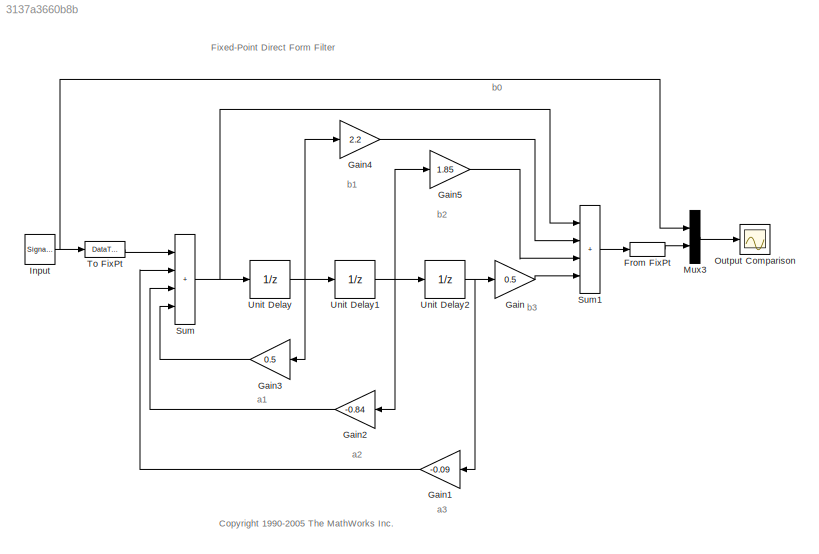
MODEL slx_3137a3660b8b
KIND model
CONFIG AbsTol = auto
CONFIG EnableMultiTasking = off
CONFIG FixedStep = 1
CONFIG MaxStep = auto
CONFIG MinStep = auto
CONFIG RelTol = 1e-3
CONFIG SampleTimeConstraint = Unconstrained
CONFIG SolverName = FixedStepDiscrete
CONFIG StartTime = 0.0
CONFIG StopTime = 200.0
BLOCK [DataTypeConversion] From FixPt
  OutDataTypeStr = double
  RndMeth = Floor
  SaturateOnIntegerOverflow = off
BLOCK [Gain] Gain
  Gain = 0.5
  OutDataTypeStr = fixdt(1,16,10)
  ParamDataTypeStr = sfix( 16 )
BLOCK [Gain] Gain1
  Gain = -0.09
  OutDataTypeStr = fixdt(1,16,10)
  ParamDataTypeStr = sfix( 16 )
BLOCK [Gain] Gain2
  Gain = -0.84
  OutDataTypeStr = fixdt(1,16,10)
  ParamDataTypeStr = sfix( 16 )
BLOCK [Gain] Gain3
  Gain = 0.5
  OutDataTypeStr = fixdt(1,16,10)
  ParamDataTypeStr = sfix( 16 )
BLOCK [Gain] Gain4
  Gain = 2.2
  OutDataTypeStr = fixdt(1,16,10)
  ParamDataTypeStr = sfix( 16 )
BLOCK [Gain] Gain5
  Gain = 1.85
  OutDataTypeStr = fixdt(1,16,10)
  ParamDataTypeStr = sfix( 16 )
BLOCK [SignalGenerator] Input
  Frequency = 0.005
  WaveForm = square
BLOCK [Mux] Mux3
  DisplayOption = bar
  Inputs = 2
BLOCK [Scope] Output Comparison
  Floating = off
  NumInputPorts = 1
  ScopeSpecificationString = Simulink.scopes.TimeScopeBlockCfg('CurrentConfiguration', extmgr.ConfigurationSet(extmgr.Configuration('Core','General UI',true),extmgr.Configuration('Core','Source UI',true),extmgr.Configuration('Sources','WiredSimulink',true,'DataLogging',true,'DataLoggingVariableName','OutputComparison','DataLoggingSaveFormat','StructureWithTime','DataLoggingLimitDataPoints',true,'DataLoggingDecimation','1','Da...<+1762ch>
BLOCK [Sum] Sum
  IconShape = rectangular
  Inputs = ++++
  OutDataTypeStr = fixdt(1,16,10)
BLOCK [Sum] Sum1
  IconShape = rectangular
  Inputs = ++++
  OutDataTypeStr = fixdt(1,16,10)
BLOCK [DataTypeConversion] To FixPt
  OutDataTypeStr = fixdt(1,16,10)
  RndMeth = Floor
  SaturateOnIntegerOverflow = off
BLOCK [UnitDelay] Unit Delay
  HasFrameUpgradeWarning = on
  InitialCondition = 0.0
  SampleTime = 1.0
BLOCK [UnitDelay] Unit Delay1
  HasFrameUpgradeWarning = on
  InitialCondition = 0.0
  SampleTime = 1.0
BLOCK [UnitDelay] Unit Delay2
  HasFrameUpgradeWarning = on
  InitialCondition = 0.0
  SampleTime = 1.0
ANNOTATION (root): <copyright redacted>
ANNOTATION (root): Fixed-Point Direct Form Filter
ANNOTATION (root): a1
ANNOTATION (root): a2
ANNOTATION (root): a3
ANNOTATION (root): b0
ANNOTATION (root): b1
ANNOTATION (root): b2
ANNOTATION (root): b3
LINE From FixPt:1 -> Mux3:2
LINE Gain1:1 -> Sum:2
LINE Gain2:1 -> Sum:3
LINE Gain3:1 -> Sum:4
LINE Gain4:1 -> Sum1:2
LINE Gain5:1 -> Sum1:3
LINE Gain:1 -> Sum1:4
NET Input:1 -> Mux3:1, To FixPt:1
LINE Mux3:1 -> Output Comparison:1
LINE Sum1:1 -> From FixPt:1
NET Sum:1 -> Sum1:1, Unit Delay:1
LINE To FixPt:1 -> Sum:1
NET Unit Delay1:1 -> Gain2:1, Gain5:1, Unit Delay2:1
NET Unit Delay2:1 -> Gain1:1, Gain:1
NET Unit Delay:1 -> Gain3:1, Gain4:1, Unit Delay1:1
note: NET lines group one-source signal fan-out (src -> all destinations, sorted); 1:1 wires keep LINE
